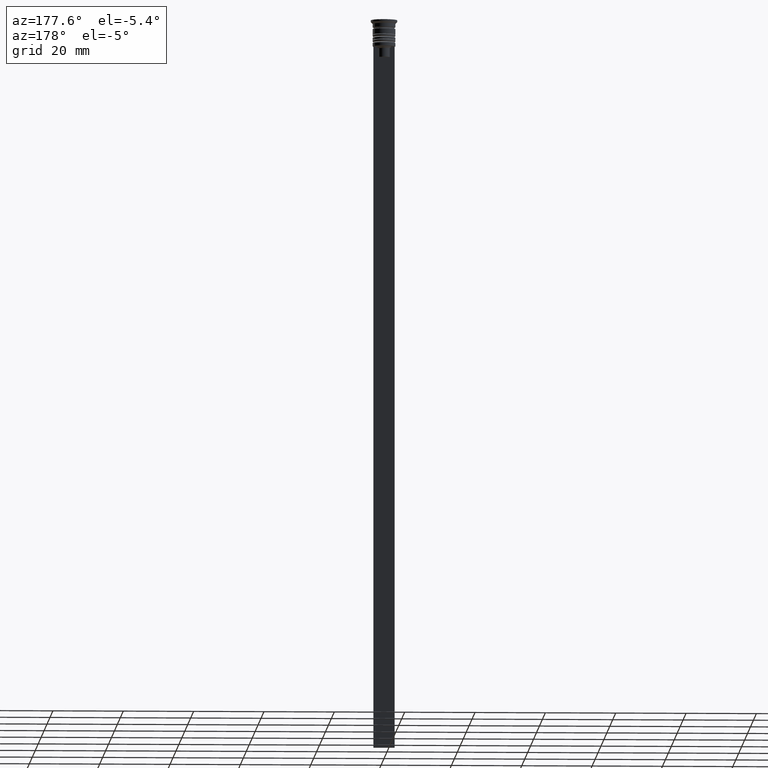
[diagram: clean part render]
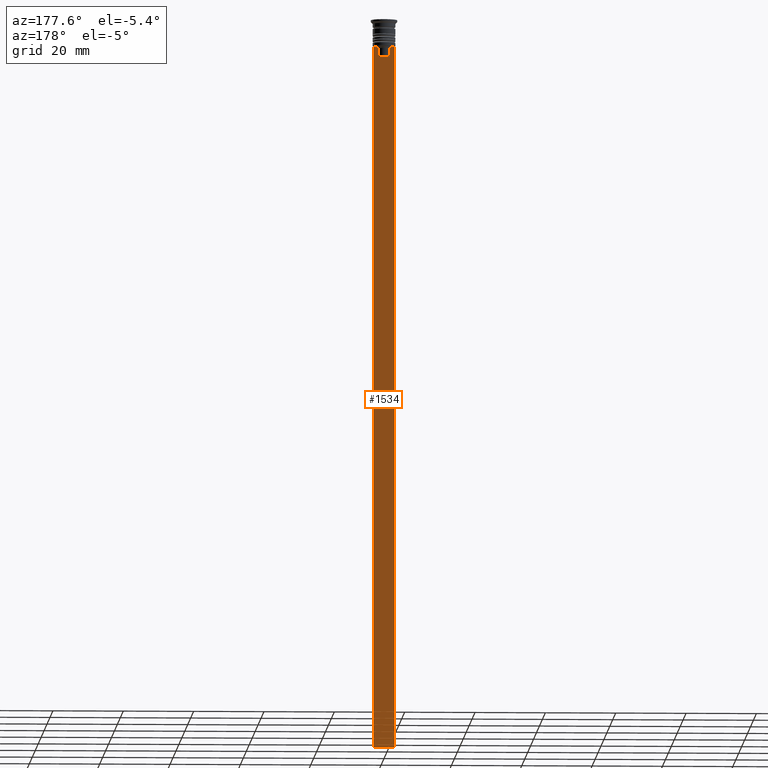
[diagram: same view with one face highlighted and labeled with its STEP entity id]
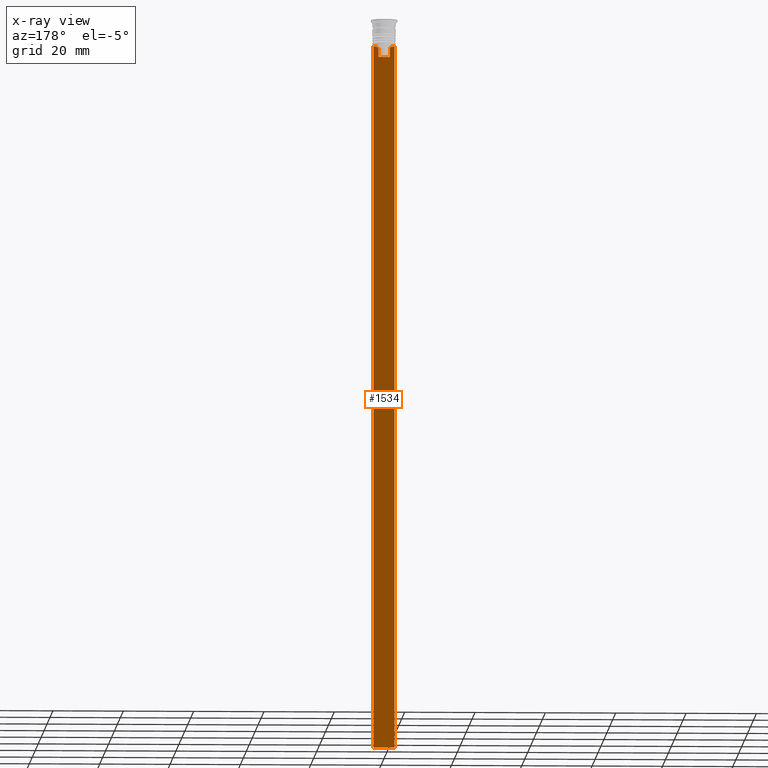
[diagram: x-ray of the same camera — body ghosted, the highlighted face saturated]
A machine part, auxiliary view. The second image highlights one B-rep face of the part: STEP entity #1534.
The next image is the same camera in x-ray: the body ghosted, the highlighted face saturated — about 0% of this face is hidden behind the body in this view.
In plain terms, the highlighted planar face has unit normal (0, -1, -0).
Its self-contained STEP definition (entity closure, byte-faithful):
#3 = VECTOR ( 'NONE', #1908, 1000.000000000000000 ) ;
#16 = CARTESIAN_POINT ( 'NONE',  ( 2.121320343559647270, 0.3500000000000000333, -7.500000000000000000 ) ) ;
#195 = VERTEX_POINT ( 'NONE', #1231 ) ;
#280 = EDGE_CURVE ( 'NONE', #531, #861, #2125, .T. ) ;
#285 = CARTESIAN_POINT ( 'NONE',  ( -1.612451549659713601, 0.3500000000000000333, 0.000000000000000000 ) ) ;
#316 = CARTESIAN_POINT ( 'NONE',  ( 1.612451549659713601, 0.3500000000000000333, -8.000000000000000000 ) ) ;
#334 = CARTESIAN_POINT ( 'NONE',  ( 2.999999999999995559, 0.3500000000000000333, -207.5000000000000284 ) ) ;
#337 = FACE_OUTER_BOUND ( 'NONE', #1921, .T. ) ;
#361 = DIRECTION ( 'NONE',  ( 0.000000000000000000, 0.000000000000000000, -1.000000000000000000 ) ) ;
#375 = EDGE_CURVE ( 'NONE', #787, #659, #876, .T. ) ;
#377 = DIRECTION ( 'NONE',  ( 1.000000000000000000, 0.000000000000000000, 0.000000000000000000 ) ) ;
#399 = EDGE_CURVE ( 'NONE', #1081, #487, #689, .T. ) ;
#468 = CARTESIAN_POINT ( 'NONE',  ( 2.121320343559647270, 0.3500000000000000333, -7.500000000000000000 ) ) ;
#478 = VECTOR ( 'NONE', #2042, 1000.000000000000000 ) ;
#487 = VERTEX_POINT ( 'NONE', #1710 ) ;
#496 = EDGE_CURVE ( 'NONE', #1507, #1081, #699, .T. ) ;
#504 = CARTESIAN_POINT ( 'NONE',  ( -2.121320343559647270, 0.3500000000000000333, -7.500000000000000000 ) ) ;
#531 = VERTEX_POINT ( 'NONE', #16 ) ;
#591 = CARTESIAN_POINT ( 'NONE',  ( -1.612451549659713601, 0.3500000000000000333, -8.000000000000000000 ) ) ;
#605 = EDGE_CURVE ( 'NONE', #487, #892, #1394, .T. ) ;
#611 = CARTESIAN_POINT ( 'NONE',  ( 2.999999999999995559, 0.3500000000000000333, -7.500000000000000000 ) ) ;
#636 = ORIENTED_EDGE ( 'NONE', *, *, #280, .T. ) ;
#659 = VERTEX_POINT ( 'NONE', #1264 ) ;
#663 = LINE ( 'NONE', #967, #2101 ) ;
#667 = CARTESIAN_POINT ( 'NONE',  ( 1.782523989086206795, 0.3500000000000000333, -7.833797837268088315 ) ) ;
#680 = ORIENTED_EDGE ( 'NONE', *, *, #1546, .T. ) ;
#681 = CARTESIAN_POINT ( 'NONE',  ( 1.612451549659713601, 0.3500000000000000333, 0.000000000000000000 ) ) ;
#689 = B_SPLINE_CURVE_WITH_KNOTS ( 'NONE', 3,
 ( #504, #1852, #1249, #591 ),
 .UNSPECIFIED., .F., .F.,
 ( 4, 4 ),
 ( 0.003684653461239336628, 0.004398058763641255961 ),
 .UNSPECIFIED. ) ;
#699 = LINE ( 'NONE', #1174, #1648 ) ;
#705 = LINE ( 'NONE', #1166, #1610 ) ;
#716 = CARTESIAN_POINT ( 'NONE',  ( -1.612451549659713601, 0.3500000000000000333, -10.49999999999999822 ) ) ;
#748 = ORIENTED_EDGE ( 'NONE', *, *, #399, .T. ) ;
#752 = CARTESIAN_POINT ( 'NONE',  ( -2.121320343559647270, 0.3500000000000000333, -7.500000000000000000 ) ) ;
#783 = ORIENTED_EDGE ( 'NONE', *, *, #605, .T. ) ;
#787 = VERTEX_POINT ( 'NONE', #1859 ) ;
#861 = VERTEX_POINT ( 'NONE', #2176 ) ;
#876 = LINE ( 'NONE', #334, #478 ) ;
#889 = AXIS2_PLACEMENT_3D ( 'NONE', #1311, #1802, #1149 ) ;
#892 = VERTEX_POINT ( 'NONE', #716 ) ;
#967 = CARTESIAN_POINT ( 'NONE',  ( 0.000000000000000000, 0.3500000000000000333, -10.49999999999999822 ) ) ;
#970 = PLANE ( 'NONE',  #889 ) ;
#999 = DIRECTION ( 'NONE',  ( -0.000000000000000000, -0.000000000000000000, 1.000000000000000000 ) ) ;
#1081 = VERTEX_POINT ( 'NONE', #752 ) ;
#1107 = VERTEX_POINT ( 'NONE', #1136 ) ;
#1117 = ORIENTED_EDGE ( 'NONE', *, *, #496, .T. ) ;
#1136 = CARTESIAN_POINT ( 'NONE',  ( 1.612451549659713601, 0.3500000000000000333, -10.49999999999999822 ) ) ;
#1149 = DIRECTION ( 'NONE',  ( 0.000000000000000000, 0.000000000000000000, -1.000000000000000000 ) ) ;
#1166 = CARTESIAN_POINT ( 'NONE',  ( -3.000000000000004441, 0.3500000000000000333, -1.459304675784417915 ) ) ;
#1174 = CARTESIAN_POINT ( 'NONE',  ( 2.999999999999995559, 0.3500000000000000333, -7.500000000000000000 ) ) ;
#1231 = CARTESIAN_POINT ( 'NONE',  ( 1.612451549659713601, 0.3500000000000000333, -8.000000000000000000 ) ) ;
#1245 = ORIENTED_EDGE ( 'NONE', *, *, #2082, .T. ) ;
#1249 = CARTESIAN_POINT ( 'NONE',  ( -1.782527878033863589, 0.3500000000000000333, -7.833794036819862860 ) ) ;
#1264 = CARTESIAN_POINT ( 'NONE',  ( -3.000000000000004441, 0.3500000000000000333, -207.5000000000000284 ) ) ;
#1311 = CARTESIAN_POINT ( 'NONE',  ( 2.999999999999995559, 0.3500000000000000333, -1.459304675784417915 ) ) ;
#1370 = EDGE_CURVE ( 'NONE', #1107, #195, #1826, .T. ) ;
#1394 = LINE ( 'NONE', #285, #1582 ) ;
#1463 = VECTOR ( 'NONE', #361, 1000.000000000000000 ) ;
#1483 = DIRECTION ( 'NONE',  ( 0.000000000000000000, 0.000000000000000000, -1.000000000000000000 ) ) ;
#1507 = VERTEX_POINT ( 'NONE', #2099 ) ;
#1534 = ADVANCED_FACE ( 'NONE', ( #337 ), #970, .F. ) ;
#1546 = EDGE_CURVE ( 'NONE', #195, #531, #1773, .T. ) ;
#1553 = LINE ( 'NONE', #2052, #1463 ) ;
#1582 = VECTOR ( 'NONE', #1483, 1000.000000000000000 ) ;
#1610 = VECTOR ( 'NONE', #2012, 1000.000000000000000 ) ;
#1631 = CARTESIAN_POINT ( 'NONE',  ( 1.952040775369266346, 0.3500000000000000333, -7.667021484535463394 ) ) ;
#1648 = VECTOR ( 'NONE', #377, 1000.000000000000000 ) ;
#1699 = ORIENTED_EDGE ( 'NONE', *, *, #1370, .T. ) ;
#1710 = CARTESIAN_POINT ( 'NONE',  ( -1.612451549659713601, 0.3500000000000000333, -8.000000000000000000 ) ) ;
#1773 = B_SPLINE_CURVE_WITH_KNOTS ( 'NONE', 3,
 ( #316, #667, #1631, #468 ),
 .UNSPECIFIED., .F., .F.,
 ( 4, 4 ),
 ( 0.008600796474521226961, 0.009317962624906524910 ),
 .UNSPECIFIED. ) ;
#1802 = DIRECTION ( 'NONE',  ( 0.000000000000000000, -1.000000000000000000, -0.000000000000000000 ) ) ;
#1826 = LINE ( 'NONE', #681, #2068 ) ;
#1852 = CARTESIAN_POINT ( 'NONE',  ( -1.952043732028445167, 0.3500000000000000333, -7.667018567316270961 ) ) ;
#1859 = CARTESIAN_POINT ( 'NONE',  ( 2.999999999999995559, 0.3500000000000000333, -207.5000000000000284 ) ) ;
#1863 = ORIENTED_EDGE ( 'NONE', *, *, #1988, .T. ) ;
#1908 = DIRECTION ( 'NONE',  ( 1.000000000000000000, 0.000000000000000000, 0.000000000000000000 ) ) ;
#1921 = EDGE_LOOP ( 'NONE', ( #1117, #748, #783, #1863, #1699, #680, #636, #1245, #1940, #2102 ) ) ;
#1940 = ORIENTED_EDGE ( 'NONE', *, *, #375, .T. ) ;
#1950 = DIRECTION ( 'NONE',  ( 1.000000000000000000, 0.000000000000000000, 0.000000000000000000 ) ) ;
#1988 = EDGE_CURVE ( 'NONE', #892, #1107, #663, .T. ) ;
#2012 = DIRECTION ( 'NONE',  ( 0.000000000000000000, 0.000000000000000000, -1.000000000000000000 ) ) ;
#2042 = DIRECTION ( 'NONE',  ( -1.000000000000000000, 0.000000000000000000, 0.000000000000000000 ) ) ;
#2052 = CARTESIAN_POINT ( 'NONE',  ( 2.999999999999995559, 0.3500000000000000333, -1.459304675784417915 ) ) ;
#2068 = VECTOR ( 'NONE', #999, 1000.000000000000000 ) ;
#2082 = EDGE_CURVE ( 'NONE', #861, #787, #1553, .T. ) ;
#2099 = CARTESIAN_POINT ( 'NONE',  ( -3.000000000000004441, 0.3499999999999999223, -7.500000000000000000 ) ) ;
#2101 = VECTOR ( 'NONE', #1950, 1000.000000000000000 ) ;
#2102 = ORIENTED_EDGE ( 'NONE', *, *, #2151, .F. ) ;
#2125 = LINE ( 'NONE', #611, #3 ) ;
#2151 = EDGE_CURVE ( 'NONE', #1507, #659, #705, .T. ) ;
#2176 = CARTESIAN_POINT ( 'NONE',  ( 2.999999999999995559, 0.3500000000000000333, -7.500000000000000000 ) ) ;